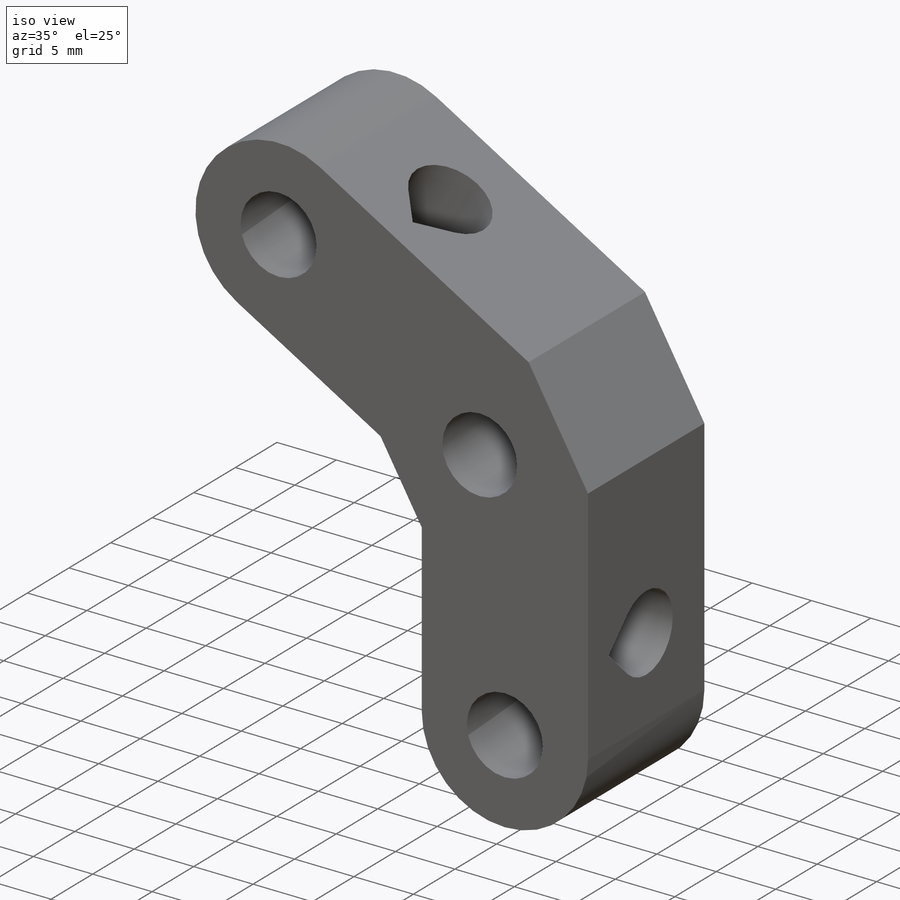
[diagram: iso view]
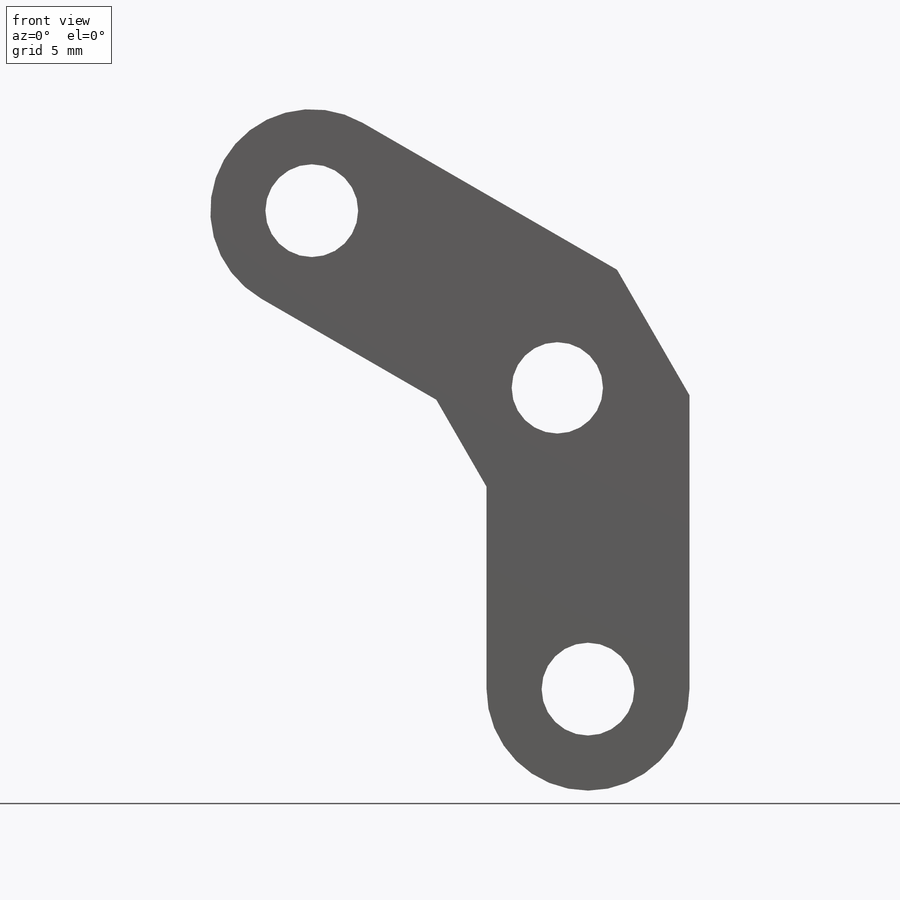
[diagram: front view]
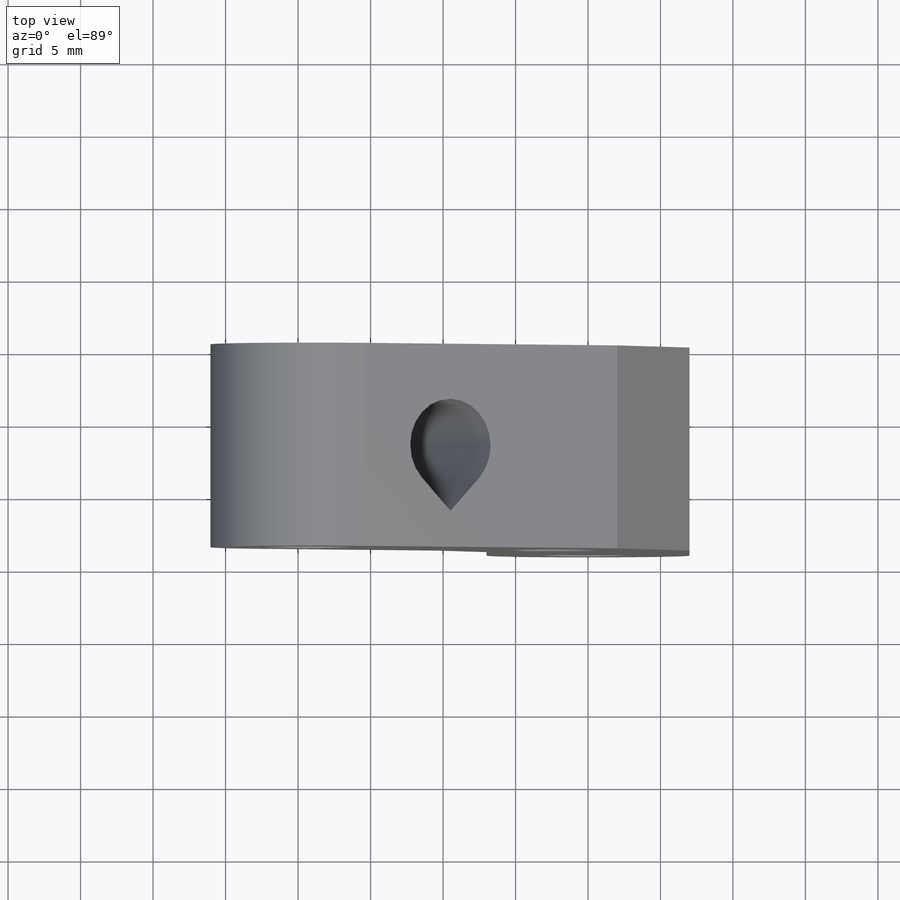
[diagram: top view]
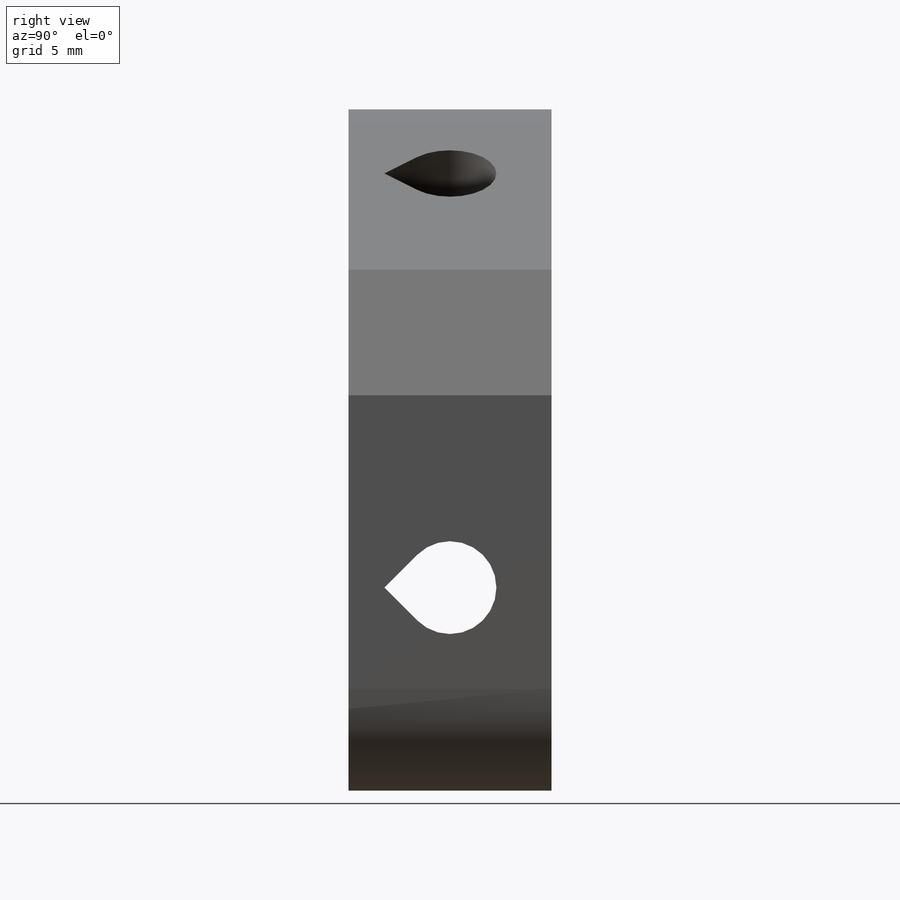
[diagram: right view]
SOLIDWORKS PART (.sldprt)
format: sldprt  version: not decoded by parser v0  size: 203,776 bytes
history: native  units: mm
features: sketch x8, cut_extrude x3, hole x2, material x1, plane x1, extrude x1 (+16 scaffold rows collapsed)
feature tree (32):
  scaffold x16  (default folders/planes/origin — collapsed)
  material  "Material <not specified>"
  plane  "Plane4"  Offset=14mm
  sketch  "Sketch1"  dims[c1.D2=7.0mm c1.D1=~13.958548mm c2.D1=120.0deg c2.D3=~3.464102mm c3.D3=150.0deg c3.D4=10.0mm c3.D5=~38.105118mm]
  extrude  "Boss-Extrude1"  Depth=14mm
  hole  "Hole1"  Diameter=6.4mm Depth=14mm
  sketch  "Sketch5"
  sketch  "Sketch4"  dims[Diameter=6.4mm Depth=14.0mm]
  hole  "Hole2"  Diameter=6.4mm Depth=14mm
  sketch  "Sketch7"  dims[c1.D1=38.105mm c1.D2=~22.372525mm c2.D2=60.0deg]
  sketch  "Sketch6"  dims[Diameter=6.4mm Depth=14.0mm]
  sketch  "Sketch2"  dims[c1.D1=3.2mm c1.D2=3.2mm c2.D1=7.0mm c2.D3=~2.301887mm c3.D3=45.0deg]
  cut_extrude  "Cut-Extrude1"  Depth=14mm
  sketch  "Sketch3"  dims[c1.D2=3.2mm c1.D1=7.0mm c1.D3=~2.383674mm c2.D3=45.0deg]
  cut_extrude  "Cut-Extrude2"  Depth=14mm
  sketch  "Sketch8"  dims[D1=6.3mm]
  cut_extrude  "Cut-Extrude3"  [1 undecoded]
decode coverage: 12 of 14 modeling features carry decoded parameters
note: ~ marks probable driven/reference dimensions
note: 1 parameter value undecoded
note: suppression state not decoded; provenance and decode notes live in map.json
